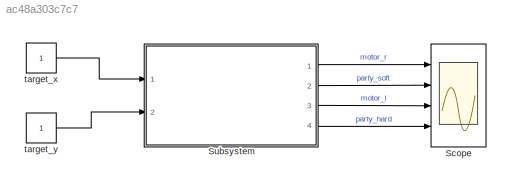
MODEL slx_ac48a303c7c7
KIND model
CONFIG AbsTol = auto
CONFIG FixedStep = auto
CONFIG MaxStep = auto
CONFIG MinStep = auto
CONFIG RelTol = 1e-3
CONFIG SampleTimeConstraint = Unconstrained
CONFIG Solver = VariableStepAuto
CONFIG SolverMode = Auto
CONFIG SolverName = VariableStepAuto
CONFIG StartTime = 0.0
CONFIG StopTime = 50
BLOCK [Scope] Scope
  NumInputPorts = 4
  Ports = [4]
  ScopeSpecificationString = Simulink.scopes.TimeScopeBlockCfg('CurrentConfiguration', extmgr.ConfigurationSet(extmgr.Configuration('Core','General UI',true),extmgr.Configuration('Core','Source UI',true),extmgr.Configuration('Sources','WiredSimulink',true),extmgr.Configuration('Visuals','Time Domain',true,'SerializedDisplays',{struct('MinYLimReal','-0.125','MaxYLimReal','1.125','YLabelReal','','MinYLimMag','0.00000','MaxYLimM...<+3391ch>
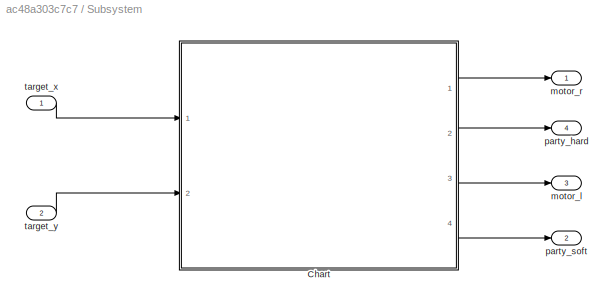
BLOCK [SubSystem] Subsystem
  Ports = [2, 4]
  RequestExecContextInheritance = off
  Variant = off
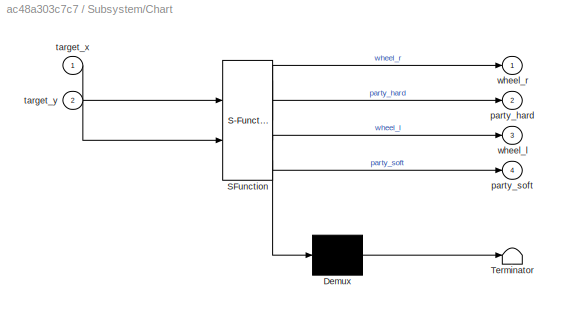
BLOCK [SubSystem] Subsystem/Chart
  ErrorFcn = Stateflow.Translate.translate
  PermitHierarchicalResolution = ExplicitOnly
  Ports = [2, 4]
  RequestExecContextInheritance = off
  SFBlockType = Chart
  TreatAsAtomicUnit = on
  Variant = off
BLOCK [Demux] Subsystem/Chart/ Demux 
  Outputs = 1
  Ports = [1, 1]
BLOCK [S-Function] Subsystem/Chart/ SFunction 
  EnableBusSupport = on
  FunctionName = sf_sfun
  PortCounts = [2 5]
  Ports = [2, 5]
  SFunctionDeploymentMode = off
  Tag = Stateflow S-Function virt_model_stage_3 3
BLOCK [Terminator] Subsystem/Chart/ Terminator 
BLOCK [Outport] Subsystem/Chart/party_hard
  IconDisplay = Port number
  Port = 2
BLOCK [Outport] Subsystem/Chart/party_soft
  IconDisplay = Port number
  Port = 4
BLOCK [Inport] Subsystem/Chart/target_x
  IconDisplay = Port number
BLOCK [Inport] Subsystem/Chart/target_y
  IconDisplay = Port number
  Port = 2
BLOCK [Outport] Subsystem/Chart/wheel_l
  IconDisplay = Port number
  Port = 3
BLOCK [Outport] Subsystem/Chart/wheel_r
  IconDisplay = Port number
BLOCK [Outport] Subsystem/motor_l
  IconDisplay = Port number
  Port = 3
BLOCK [Outport] Subsystem/motor_r
  IconDisplay = Port number
BLOCK [Outport] Subsystem/party_hard
  IconDisplay = Port number
  Port = 4
BLOCK [Outport] Subsystem/party_soft
  IconDisplay = Port number
  Port = 2
BLOCK [Inport] Subsystem/target_x
  IconDisplay = Port number
BLOCK [Inport] Subsystem/target_y
  IconDisplay = Port number
  Port = 2
BLOCK [Constant] target_x
BLOCK [Constant] target_y
LINE Subsystem/Chart:1 -> Subsystem/motor_r:1
LINE Subsystem/Chart:2 -> Subsystem/party_hard:1
LINE Subsystem/Chart:3 -> Subsystem/motor_l:1
LINE Subsystem/Chart:4 -> Subsystem/party_soft:1
LINE Subsystem/target_x:1 -> Subsystem/Chart:1
LINE Subsystem/target_y:1 -> Subsystem/Chart:2
LINE Subsystem:1 -> Scope:1
LINE Subsystem:2 -> Scope:2
LINE Subsystem:3 -> Scope:3
LINE Subsystem:4 -> Scope:4
LINE target_x:1 -> Subsystem:1
LINE target_y:1 -> Subsystem:2
CHART Subsystem/Chart states=5 transitions=7
  STATE_LABEL 'compute\nentry:\ntarget_dir = atan2((target_y - curr_y), (target_x - curr_x))\ndir = (target_dir - curr_dir) / rad_per_sec\ndist = sqrt((target_y - curr_y)^2 + (target_x - curr_x)^2) / dist_per_sec'
  STATE_LABEL 'rotate_left\nentry:\nwheel_r = 1\nwheel_l = -1'
  STATE_LABEL 'rotate_right\nentry:\nwheel_r = -1\nwheel_l = 1'
  STATE_LABEL 'drive\nentry:\nparty_soft = 1\nwheel_r = 1\nwheel_l = 1'
  STATE_LABEL 'profit\nentry:\nparty_hard = 1\nwheel_l = 0\nwheel_r = 0'
